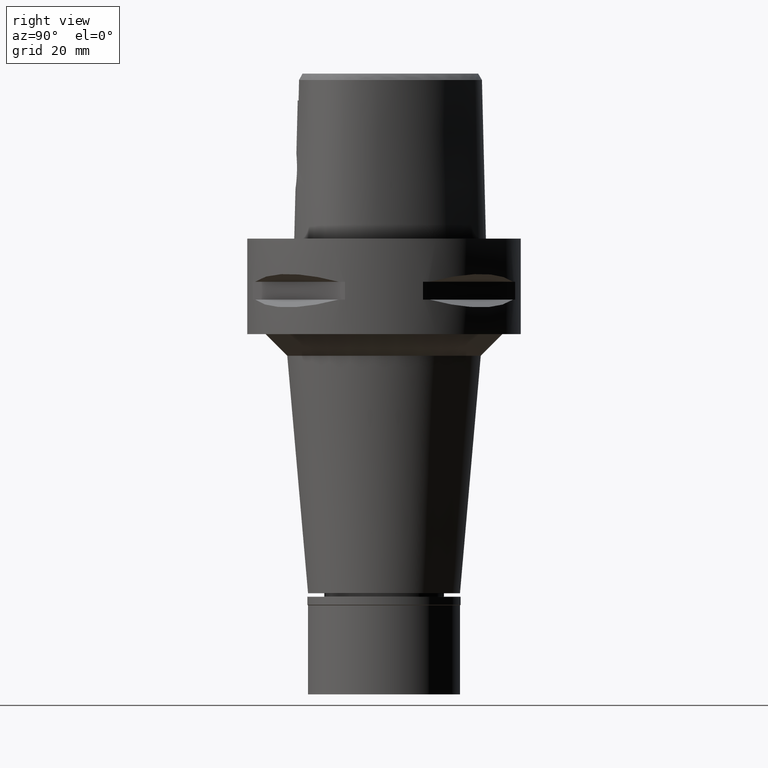
[diagram: clean part render]
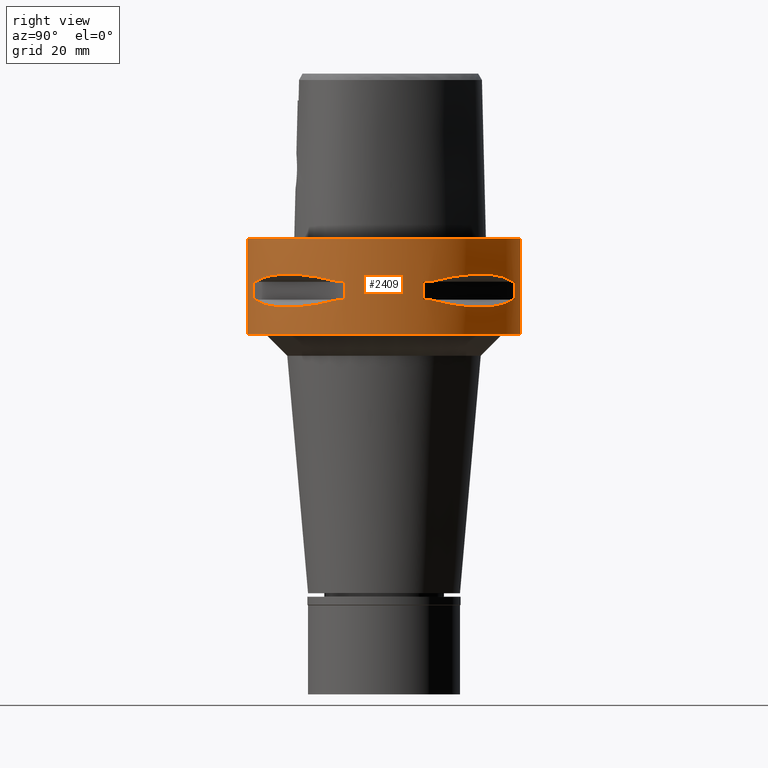
[diagram: same view with one face highlighted and labeled with its STEP entity id]
A machine part, right view. The second image highlights one B-rep face of the part: STEP entity #2409.
In plain terms, the highlighted cylindrical surface (partial cylindrical patch) has radius 31.5 mm, axis along (0, 0, -1).
Its self-contained STEP definition (entity closure, byte-faithful):
#7 = ORIENTED_EDGE ( 'NONE', *, *, #3796, .T. ) ;
#57 = DIRECTION ( 'NONE',  ( 0.0000000000000000000, 0.0000000000000000000, -1.000000000000000000 ) ) ;
#60 = CARTESIAN_POINT ( 'NONE',  ( 17.14106442935163699, 26.42800887047211944, -15.43984550238531916 ) ) ;
#114 = CARTESIAN_POINT ( 'NONE',  ( 26.84474411198702981, 16.48208282229089505, -15.34094883778014129 ) ) ;
#132 = DIRECTION ( 'NONE',  ( 0.0000000000000000000, -1.000000000000000000, 0.0000000000000000000 ) ) ;
#148 = AXIS2_PLACEMENT_3D ( 'NONE', #468, #4031, #132 ) ;
#153 = CARTESIAN_POINT ( 'NONE',  ( 26.42800887047654967, -17.14106442934675911, -15.43984550238513620 ) ) ;
#165 = CARTESIAN_POINT ( 'NONE',  ( 30.19251670572000279, 8.981198972019999616, -9.950000000000001066 ) ) ;
#186 = CARTESIAN_POINT ( 'NONE',  ( 28.91382665370159089, -12.73197616784618269, -14.65467361752943098 ) ) ;
#251 = CARTESIAN_POINT ( 'NONE',  ( 10.44775724750000023, -29.71690375017999841, -14.05000000000000071 ) ) ;
#256 = VERTEX_POINT ( 'NONE', #4543 ) ;
#339 = LINE ( 'NONE', #4212, #2525 ) ;
#356 = CARTESIAN_POINT ( 'NONE',  ( 10.44775724750000023, 29.71690375017999841, -9.949999999998999201 ) ) ;
#382 = CARTESIAN_POINT ( 'NONE',  ( 0.0000000000000000000, 1.284838189324999924E-14, 0.0000000000000000000 ) ) ;
#402 = EDGE_LOOP ( 'NONE', ( #2765, #3060, #3937, #2060 ) ) ;
#425 = CIRCLE ( 'NONE', #4785, 31.50000000000000711 ) ;
#429 = EDGE_CURVE ( 'NONE', #4038, #3099, #1584, .T. ) ;
#463 = CARTESIAN_POINT ( 'NONE',  ( 10.44775724750000023, 29.71690375017999841, -14.05000000000000071 ) ) ;
#468 = CARTESIAN_POINT ( 'NONE',  ( 0.0000000000000000000, 1.284838189324999924E-14, -22.00000000000000000 ) ) ;
#518 = CARTESIAN_POINT ( 'NONE',  ( 0.0000000000000000000, 1.284838189324999924E-14, -9.950000000000001066 ) ) ;
#551 = EDGE_LOOP ( 'NONE', ( #786, #1261, #7, #3189, #3552, #3837, #4156, #4353 ) ) ;
#561 = DIRECTION ( 'NONE',  ( 0.2851174276831918153, -0.9584925938322735872, 0.0000000000000000000 ) ) ;
#575 = LINE ( 'NONE', #3693, #718 ) ;
#718 = VECTOR ( 'NONE', #4441, 1000.000000000000000 ) ;
#786 = ORIENTED_EDGE ( 'NONE', *, *, #3163, .T. ) ;
#834 = DIRECTION ( 'NONE',  ( 0.0000000000000000000, 0.0000000000000000000, -1.000000000000000000 ) ) ;
#837 = VERTEX_POINT ( 'NONE', #463 ) ;
#846 = CARTESIAN_POINT ( 'NONE',  ( 18.59229662067690114, 25.43927894889767316, -15.62866126334676942 ) ) ;
#926 = CARTESIAN_POINT ( 'NONE',  ( 26.70521063584491017, 16.70616724745910275, -15.37546661817714444 ) ) ;
#940 = CARTESIAN_POINT ( 'NONE',  ( 12.70092055722019531, -28.92474506847805316, -9.353547358250271060 ) ) ;
#946 = CARTESIAN_POINT ( 'NONE',  ( 20.65093790434436372, -23.89673728056386182, -15.83935804901581079 ) ) ;
#954 = EDGE_CURVE ( 'NONE', #1259, #2071, #4377, .T. ) ;
#986 = EDGE_CURVE ( 'NONE', #3859, #4405, #1373, .T. ) ;
#999 = EDGE_CURVE ( 'NONE', #3929, #1629, #3682, .T. ) ;
#1023 = CARTESIAN_POINT ( 'NONE',  ( 13.25636937907020929, -28.62019653467701730, -14.74888225542203379 ) ) ;
#1106 = CARTESIAN_POINT ( 'NONE',  ( 8.981198972019999616, 30.19251670572000279, -14.05000000000000071 ) ) ;
#1178 = DIRECTION ( 'NONE',  ( 0.0000000000000000000, 1.000000000000000000, 0.0000000000000000000 ) ) ;
#1211 = ORIENTED_EDGE ( 'NONE', *, *, #954, .T. ) ;
#1228 = CARTESIAN_POINT ( 'NONE',  ( 29.71690375017999841, -10.44775724750000023, -9.949999999998999201 ) ) ;
#1233 = EDGE_CURVE ( 'NONE', #3929, #1406, #3420, .T. ) ;
#1234 = AXIS2_PLACEMENT_3D ( 'NONE', #3469, #1252, #4228 ) ;
#1235 = CARTESIAN_POINT ( 'NONE',  ( 17.76952662673489769, 26.01217882833579154, -15.52665221626253356 ) ) ;
#1244 = CIRCLE ( 'NONE', #4144, 31.50000000000000711 ) ;
#1252 = DIRECTION ( 'NONE',  ( 0.0000000000000000000, 0.0000000000000000000, -1.000000000000000000 ) ) ;
#1259 = VERTEX_POINT ( 'NONE', #2486 ) ;
#1261 = ORIENTED_EDGE ( 'NONE', *, *, #429, .F. ) ;
#1274 = CARTESIAN_POINT ( 'NONE',  ( 0.0000000000000000000, 1.284838189324999924E-14, -9.950000000000001066 ) ) ;
#1278 = CARTESIAN_POINT ( 'NONE',  ( 14.84422749186521351, -27.88214534477222628, -8.906206096533258787 ) ) ;
#1306 = CARTESIAN_POINT ( 'NONE',  ( 23.89673728051777957, 20.65093790438612587, -15.83935804901405042 ) ) ;
#1324 = CARTESIAN_POINT ( 'NONE',  ( 10.44775724750000023, -29.71690375017999841, -9.949999999998999201 ) ) ;
#1351 = CARTESIAN_POINT ( 'NONE',  ( 27.88214534477233286, 14.84422749186507318, -8.906206096533262340 ) ) ;
#1373 = LINE ( 'NONE', #2199, #4608 ) ;
#1391 = CIRCLE ( 'NONE', #2839, 31.50000000000000000 ) ;
#1401 = DIRECTION ( 'NONE',  ( 0.0000000000000000000, 0.0000000000000000000, -1.000000000000000000 ) ) ;
#1406 = VERTEX_POINT ( 'NONE', #3038 ) ;
#1466 = CIRCLE ( 'NONE', #1797, 31.50000000000001776 ) ;
#1505 = EDGE_CURVE ( 'NONE', #3859, #2415, #1645, .T. ) ;
#1512 = EDGE_CURVE ( 'NONE', #2245, #837, #3306, .T. ) ;
#1516 = CARTESIAN_POINT ( 'NONE',  ( 18.81462633043445010, 25.37272068390331725, -8.309724968561150504 ) ) ;
#1584 = LINE ( 'NONE', #2336, #2268 ) ;
#1605 = DIRECTION ( 'NONE',  ( 0.0000000000000000000, 0.0000000000000000000, -1.000000000000000000 ) ) ;
#1623 = LINE ( 'NONE', #2404, #1792 ) ;
#1629 = VERTEX_POINT ( 'NONE', #2572 ) ;
#1645 = CIRCLE ( 'NONE', #2273, 31.50000000000001776 ) ;
#1669 = DIRECTION ( 'NONE',  ( 0.0000000000000000000, 0.0000000000000000000, 1.000000000000000000 ) ) ;
#1678 = DIRECTION ( 'NONE',  ( 0.9584925938322735872, 0.2851174276831918153, 0.0000000000000000000 ) ) ;
#1690 = VERTEX_POINT ( 'NONE', #2479 ) ;
#1694 = CARTESIAN_POINT ( 'NONE',  ( 28.92472615202282427, -12.70097436192359552, -9.353533115182571578 ) ) ;
#1702 = CARTESIAN_POINT ( 'NONE',  ( 16.98999780422198569, 26.52527364208497573, -15.41788098766329540 ) ) ;
#1721 = CARTESIAN_POINT ( 'NONE',  ( 18.81455742151816324, -25.37277178176728398, -8.309746333162701504 ) ) ;
#1792 = VECTOR ( 'NONE', #57, 1000.000000000000000 ) ;
#1797 = AXIS2_PLACEMENT_3D ( 'NONE', #2285, #1605, #4668 ) ;
#1801 = CARTESIAN_POINT ( 'NONE',  ( 25.43927894892507169, -18.59229662064666755, -15.62866126334561123 ) ) ;
#1807 = ORIENTED_EDGE ( 'NONE', *, *, #2645, .T. ) ;
#1812 = EDGE_CURVE ( 'NONE', #2415, #3240, #4865, .T. ) ;
#1823 = CARTESIAN_POINT ( 'NONE',  ( 29.71690375017999841, 10.44775724750000023, -9.949999999998999201 ) ) ;
#1873 = EDGE_CURVE ( 'NONE', #2540, #256, #1391, .T. ) ;
#1885 = EDGE_LOOP ( 'NONE', ( #3939, #2407, #3560, #4109, #4443, #3541, #1211, #1807 ) ) ;
#1894 = CARTESIAN_POINT ( 'NONE',  ( 30.19251670572000279, -8.981198972019999616, -14.05000000000000071 ) ) ;
#1927 = CARTESIAN_POINT ( 'NONE',  ( 10.44775724750000023, -29.71690375017999841, -9.949999999998999201 ) ) ;
#1964 = DIRECTION ( 'NONE',  ( 0.0000000000000000000, 0.0000000000000000000, 1.000000000000000000 ) ) ;
#1968 = DIRECTION ( 'NONE',  ( 0.0000000000000000000, 0.0000000000000000000, 1.000000000000000000 ) ) ;
#1976 = CARTESIAN_POINT ( 'NONE',  ( 29.71690375017999841, 10.44775724750000023, -9.949999999998999201 ) ) ;
#1996 = CARTESIAN_POINT ( 'NONE',  ( 8.981198972017999438, 30.19251670572000279, -9.950000000000001066 ) ) ;
#1998 = CYLINDRICAL_SURFACE ( 'NONE', #1234, 31.50000000000000000 ) ;
#2026 = CARTESIAN_POINT ( 'NONE',  ( 0.0000000000000000000, 1.284838189324999924E-14, -9.950000000000001066 ) ) ;
#2030 = EDGE_CURVE ( 'NONE', #2540, #3357, #1623, .T. ) ;
#2036 = CARTESIAN_POINT ( 'NONE',  ( 26.58330558444425762, 16.89910283486581832, -15.40446471307235754 ) ) ;
#2048 = AXIS2_PLACEMENT_3D ( 'NONE', #4757, #2458, #561 ) ;
#2060 = ORIENTED_EDGE ( 'NONE', *, *, #2030, .F. ) ;
#2061 = CARTESIAN_POINT ( 'NONE',  ( 29.71690375017999841, 10.44775724750000023, -14.05000000000000071 ) ) ;
#2071 = VERTEX_POINT ( 'NONE', #1927 ) ;
#2079 = CARTESIAN_POINT ( 'NONE',  ( 29.31542262584548553, 11.58970337494890224, -14.35229357167063213 ) ) ;
#2107 = CARTESIAN_POINT ( 'NONE',  ( 16.89910283486529252, -26.58330558444471947, -15.40446471307232912 ) ) ;
#2172 = CARTESIAN_POINT ( 'NONE',  ( 26.52527364208627958, -16.98999780422056816, -15.41788098766324744 ) ) ;
#2199 = CARTESIAN_POINT ( 'NONE',  ( 30.19251670572000279, 8.981198972017999438, -9.950000000000001066 ) ) ;
#2245 = VERTEX_POINT ( 'NONE', #2500 ) ;
#2268 = VECTOR ( 'NONE', #1968, 1000.000000000000000 ) ;
#2273 = AXIS2_PLACEMENT_3D ( 'NONE', #518, #4758, #1678 ) ;
#2285 = CARTESIAN_POINT ( 'NONE',  ( 0.0000000000000000000, 1.284838189324999924E-14, -14.05000000000000071 ) ) ;
#2300 = EDGE_CURVE ( 'NONE', #4611, #4317, #3489, .T. ) ;
#2327 = CIRCLE ( 'NONE', #148, 31.50000000000000000 ) ;
#2336 = CARTESIAN_POINT ( 'NONE',  ( 8.981198972017999438, 30.19251670572000279, -14.05000000000000071 ) ) ;
#2339 = CARTESIAN_POINT ( 'NONE',  ( 0.0000000000000000000, 1.284838189324999924E-14, -14.05000000000000071 ) ) ;
#2362 = CIRCLE ( 'NONE', #2596, 31.50000000000001776 ) ;
#2383 = CARTESIAN_POINT ( 'NONE',  ( 12.73197616789159525, 28.91382665368562144, -14.65467361754145514 ) ) ;
#2404 = CARTESIAN_POINT ( 'NONE',  ( 0.0000000000000000000, 31.50000000000000000, 0.0000000000000000000 ) ) ;
#2407 = ORIENTED_EDGE ( 'NONE', *, *, #4192, .F. ) ;
#2408 = CARTESIAN_POINT ( 'NONE',  ( 17.05047092244498685, 26.48642424310287780, -15.42670883407686411 ) ) ;
#2409 = ADVANCED_FACE ( 'NONE', ( #3135, #3496, #2700 ), #1998, .T. ) ;
#2415 = VERTEX_POINT ( 'NONE', #1976 ) ;
#2416 = DIRECTION ( 'NONE',  ( 0.3316748332540863653, -0.9433937698468619626, 0.0000000000000000000 ) ) ;
#2458 = DIRECTION ( 'NONE',  ( 0.0000000000000000000, 0.0000000000000000000, 1.000000000000000000 ) ) ;
#2474 = CARTESIAN_POINT ( 'NONE',  ( 25.37272068390325330, -18.81462633043449983, -8.309724968561150504 ) ) ;
#2479 = CARTESIAN_POINT ( 'NONE',  ( 0.0000000000000000000, -31.50000000000000000, -22.00000000000000000 ) ) ;
#2486 = CARTESIAN_POINT ( 'NONE',  ( 8.981198972019999616, -30.19251670572000279, -9.950000000000001066 ) ) ;
#2500 = CARTESIAN_POINT ( 'NONE',  ( 29.71690375017999841, 10.44775724750000023, -14.05000000000000071 ) ) ;
#2525 = VECTOR ( 'NONE', #1964, 1000.000000000000000 ) ;
#2529 = CARTESIAN_POINT ( 'NONE',  ( 16.70616724746217940, -26.70521063584381949, -15.37546661817795624 ) ) ;
#2540 = VERTEX_POINT ( 'NONE', #3110 ) ;
#2551 = CARTESIAN_POINT ( 'NONE',  ( 16.86571563436751475, -26.60451452154716989, -15.39949295786035854 ) ) ;
#2572 = CARTESIAN_POINT ( 'NONE',  ( 29.71690375017999841, -10.44775724750000023, -14.05000000000000071 ) ) ;
#2574 = DIRECTION ( 'NONE',  ( 0.0000000000000000000, 0.0000000000000000000, -1.000000000000000000 ) ) ;
#2596 = AXIS2_PLACEMENT_3D ( 'NONE', #2339, #834, #3080 ) ;
#2645 = EDGE_CURVE ( 'NONE', #2071, #4611, #4450, .T. ) ;
#2700 = FACE_BOUND ( 'NONE', #551, .T. ) ;
#2704 = CARTESIAN_POINT ( 'NONE',  ( 14.84430321591224278, 27.88210502977331373, -8.906184731931707788 ) ) ;
#2721 = DIRECTION ( 'NONE',  ( 0.0000000000000000000, 0.0000000000000000000, 1.000000000000000000 ) ) ;
#2737 = CARTESIAN_POINT ( 'NONE',  ( 0.0000000000000000000, 31.50000000000000000, -22.00000000000000000 ) ) ;
#2763 = CARTESIAN_POINT ( 'NONE',  ( 17.35163608580574035, 26.29071741523071282, -15.46976201925525274 ) ) ;
#2765 = ORIENTED_EDGE ( 'NONE', *, *, #1873, .T. ) ;
#2782 = DIRECTION ( 'NONE',  ( 0.9433937698468619626, -0.3316748332540863653, 0.0000000000000000000 ) ) ;
#2789 = CARTESIAN_POINT ( 'NONE',  ( 27.11872488589154528, 16.03138450078616728, -15.26880420107737990 ) ) ;
#2805 = CARTESIAN_POINT ( 'NONE',  ( 27.88210502977326755, -14.84430321591228186, -8.906184731931707788 ) ) ;
#2823 = DIRECTION ( 'NONE',  ( 0.3316748332540863653, 0.9433937698468619626, 0.0000000000000000000 ) ) ;
#2839 = AXIS2_PLACEMENT_3D ( 'NONE', #382, #3854, #1178 ) ;
#2840 = CARTESIAN_POINT ( 'NONE',  ( 21.46242677080035932, 23.08532645886616308, -15.83938991065496715 ) ) ;
#2861 = CARTESIAN_POINT ( 'NONE',  ( 16.80193241490779599, -26.64486562695696037, -15.38992683735752642 ) ) ;
#2862 = CARTESIAN_POINT ( 'NONE',  ( 26.64486562695759275, 16.80193241490600542, -15.38992683735705391 ) ) ;
#2880 = CARTESIAN_POINT ( 'NONE',  ( 26.29071741523927841, -17.35163608579630079, -15.46976201925489569 ) ) ;
#2881 = CARTESIAN_POINT ( 'NONE',  ( 25.37277178176736570, 18.81455742151809574, -8.309746333162701504 ) ) ;
#3038 = CARTESIAN_POINT ( 'NONE',  ( 8.981198972017999438, -30.19251670572000279, -14.05000000000000071 ) ) ;
#3060 = ORIENTED_EDGE ( 'NONE', *, *, #4529, .T. ) ;
#3080 = DIRECTION ( 'NONE',  ( 0.2851174276831918153, 0.9584925938322735872, 0.0000000000000000000 ) ) ;
#3099 = VERTEX_POINT ( 'NONE', #1996 ) ;
#3110 = CARTESIAN_POINT ( 'NONE',  ( 0.0000000000000000000, 31.50000000000000000, 0.0000000000000000000 ) ) ;
#3135 = FACE_OUTER_BOUND ( 'NONE', #402, .T. ) ;
#3163 = EDGE_CURVE ( 'NONE', #3240, #3099, #1244, .T. ) ;
#3179 = CARTESIAN_POINT ( 'NONE',  ( 10.44775724750000023, 29.71690375017999841, -14.05000000000000071 ) ) ;
#3189 = ORIENTED_EDGE ( 'NONE', *, *, #1512, .F. ) ;
#3215 = EDGE_CURVE ( 'NONE', #2245, #4405, #425, .T. ) ;
#3239 = DIRECTION ( 'NONE',  ( 0.9433937698468619626, 0.3316748332540863653, 0.0000000000000000000 ) ) ;
#3240 = VERTEX_POINT ( 'NONE', #3572 ) ;
#3254 = CARTESIAN_POINT ( 'NONE',  ( 11.58970337496347902, -29.31542262584038028, -14.35229357167449216 ) ) ;
#3298 = LINE ( 'NONE', #4062, #4677 ) ;
#3306 = B_SPLINE_CURVE_WITH_KNOTS ( 'NONE', 3,
 ( #2061, #2079, #4316, #3630, #2789, #114, #926, #2862, #4787, #2036, #3609, #1306, #2840, #4007, #846, #1235, #2763, #60, #2408, #1702, #4409, #4717, #2383, #3179 ),
 .UNSPECIFIED., .F., .F.,
 ( 4, 1, 1, 1, 1, 1, 2, 2, 2, 1, 1, 1, 1, 1, 2, 2, 4 ),
 ( 0.0000000000000000000, 0.1250000000000023870, 0.1875000000000036915, 0.2187500000000045797, 0.2343750000000049960, 0.2421875000000053013, 0.2460937500000055789, 0.2500000000000058842, 0.5000000000000076605, 0.6250000000000083267, 0.6875000000000086597, 0.7187500000000088818, 0.7343750000000086597, 0.7421875000000086597, 0.7460937500000084377, 0.7500000000000083267, 1.000000000000000000 ),
 .UNSPECIFIED. ) ;
#3328 = AXIS2_PLACEMENT_3D ( 'NONE', #2026, #2721, #2782 ) ;
#3349 = CARTESIAN_POINT ( 'NONE',  ( 26.48642424310542509, -17.05047092244215889, -15.42670883407675042 ) ) ;
#3357 = VERTEX_POINT ( 'NONE', #2737 ) ;
#3376 = CARTESIAN_POINT ( 'NONE',  ( 28.92474506847813132, 12.70092055722002122, -9.353547358250267507 ) ) ;
#3396 = EDGE_CURVE ( 'NONE', #3690, #1629, #1466, .T. ) ;
#3420 = CIRCLE ( 'NONE', #3728, 31.50000000000000711 ) ;
#3469 = CARTESIAN_POINT ( 'NONE',  ( 0.0000000000000000000, 1.284838189324999924E-14, 4.915000000000000036 ) ) ;
#3489 = CIRCLE ( 'NONE', #3328, 31.50000000000000711 ) ;
#3496 = FACE_BOUND ( 'NONE', #1885, .T. ) ;
#3541 = ORIENTED_EDGE ( 'NONE', *, *, #4894, .F. ) ;
#3552 = ORIENTED_EDGE ( 'NONE', *, *, #3215, .T. ) ;
#3560 = ORIENTED_EDGE ( 'NONE', *, *, #3396, .T. ) ;
#3572 = CARTESIAN_POINT ( 'NONE',  ( 10.44775724750000023, 29.71690375017999841, -9.949999999998999201 ) ) ;
#3597 = DIRECTION ( 'NONE',  ( 0.0000000000000000000, 0.0000000000000000000, -1.000000000000000000 ) ) ;
#3609 = CARTESIAN_POINT ( 'NONE',  ( 25.32725744468687168, 18.86897208071480136, -15.69588095933130845 ) ) ;
#3619 = CARTESIAN_POINT ( 'NONE',  ( 0.0000000000000000000, 1.284838189324999924E-14, -14.05000000000000071 ) ) ;
#3630 = CARTESIAN_POINT ( 'NONE',  ( 27.64634172018161706, 15.11986997310341962, -15.11207862403678170 ) ) ;
#3656 = CARTESIAN_POINT ( 'NONE',  ( 16.03138450079733346, -27.11872488588761954, -15.26880420108033398 ) ) ;
#3682 = B_SPLINE_CURVE_WITH_KNOTS ( 'NONE', 3,
 ( #251, #3254, #1023, #4827, #3656, #4408, #2529, #2861, #2551, #2107, #4429, #946, #4059, #4478, #1801, #4029, #2880, #153, #3349, #2172, #3702, #4455, #186, #4786 ),
 .UNSPECIFIED., .F., .F.,
 ( 4, 1, 1, 1, 1, 1, 2, 2, 2, 1, 1, 1, 1, 1, 2, 2, 4 ),
 ( 0.0000000000000000000, 0.1250000000000063005, 0.1875000000000094369, 0.2187500000000109357, 0.2343750000000116851, 0.2421875000000119627, 0.2460937500000119627, 0.2500000000000119349, 0.5000000000000025535, 0.6249999999999978906, 0.6874999999999955591, 0.7187499999999945599, 0.7343749999999941158, 0.7421874999999936717, 0.7460937499999935607, 0.7499999999999933387, 1.000000000000000000 ),
 .UNSPECIFIED. ) ;
#3690 = VERTEX_POINT ( 'NONE', #1894 ) ;
#3693 = CARTESIAN_POINT ( 'NONE',  ( 8.981198972017999438, -30.19251670572000279, -9.950000000000001066 ) ) ;
#3702 = CARTESIAN_POINT ( 'NONE',  ( 26.54368690921627305, -16.96123479564985459, -15.41365572341332602 ) ) ;
#3728 = AXIS2_PLACEMENT_3D ( 'NONE', #3994, #3597, #2416 ) ;
#3779 = CARTESIAN_POINT ( 'NONE',  ( 12.70097436192362572, 28.92472615202282782, -9.353533115182571578 ) ) ;
#3796 = EDGE_CURVE ( 'NONE', #4038, #837, #2362, .T. ) ;
#3837 = ORIENTED_EDGE ( 'NONE', *, *, #986, .F. ) ;
#3854 = DIRECTION ( 'NONE',  ( 0.0000000000000000000, 0.0000000000000000000, -1.000000000000000000 ) ) ;
#3859 = VERTEX_POINT ( 'NONE', #165 ) ;
#3929 = VERTEX_POINT ( 'NONE', #4350 ) ;
#3937 = ORIENTED_EDGE ( 'NONE', *, *, #4355, .T. ) ;
#3939 = ORIENTED_EDGE ( 'NONE', *, *, #2300, .T. ) ;
#3949 = DIRECTION ( 'NONE',  ( 0.0000000000000000000, 0.0000000000000000000, -1.000000000000000000 ) ) ;
#3994 = CARTESIAN_POINT ( 'NONE',  ( 0.0000000000000000000, 1.284838189324999924E-14, -14.05000000000000071 ) ) ;
#4007 = CARTESIAN_POINT ( 'NONE',  ( 20.18579225689579104, 24.23018836742823723, -15.78559396979392560 ) ) ;
#4023 = CARTESIAN_POINT ( 'NONE',  ( 29.71690375017999841, -10.44775724750000023, -9.949999999998999201 ) ) ;
#4029 = CARTESIAN_POINT ( 'NONE',  ( 26.01217882835178585, -17.76952662671725847, -15.52665221626185676 ) ) ;
#4031 = DIRECTION ( 'NONE',  ( 0.0000000000000000000, 0.0000000000000000000, 1.000000000000000000 ) ) ;
#4038 = VERTEX_POINT ( 'NONE', #1106 ) ;
#4053 = CARTESIAN_POINT ( 'NONE',  ( 20.64154884334739393, -23.90617837140507973, -8.160627831333192361 ) ) ;
#4059 = CARTESIAN_POINT ( 'NONE',  ( 23.08532645888704238, -21.46242677077732353, -15.83938991065408963 ) ) ;
#4062 = CARTESIAN_POINT ( 'NONE',  ( 0.0000000000000000000, -31.50000000000000000, 0.0000000000000000000 ) ) ;
#4109 = ORIENTED_EDGE ( 'NONE', *, *, #999, .F. ) ;
#4144 = AXIS2_PLACEMENT_3D ( 'NONE', #1274, #1669, #2823 ) ;
#4156 = ORIENTED_EDGE ( 'NONE', *, *, #1505, .T. ) ;
#4192 = EDGE_CURVE ( 'NONE', #3690, #4317, #339, .T. ) ;
#4212 = CARTESIAN_POINT ( 'NONE',  ( 30.19251670572000279, -8.981198972017999438, -14.05000000000000071 ) ) ;
#4228 = DIRECTION ( 'NONE',  ( 0.0000000000000000000, -1.000000000000000000, 0.0000000000000000000 ) ) ;
#4316 = CARTESIAN_POINT ( 'NONE',  ( 28.62019653468597724, 13.25636937904471147, -14.74888225541528186 ) ) ;
#4317 = VERTEX_POINT ( 'NONE', #4720 ) ;
#4350 = CARTESIAN_POINT ( 'NONE',  ( 10.44775724750000023, -29.71690375017999841, -14.05000000000000071 ) ) ;
#4353 = ORIENTED_EDGE ( 'NONE', *, *, #1812, .T. ) ;
#4355 = EDGE_CURVE ( 'NONE', #1690, #3357, #2327, .T. ) ;
#4377 = CIRCLE ( 'NONE', #2048, 31.50000000000001776 ) ;
#4405 = VERTEX_POINT ( 'NONE', #4411 ) ;
#4408 = CARTESIAN_POINT ( 'NONE',  ( 16.48208282229687427, -26.84474411198493371, -15.34094883778172402 ) ) ;
#4409 = CARTESIAN_POINT ( 'NONE',  ( 16.96123479564913694, 26.54368690921650398, -15.41365572341313239 ) ) ;
#4411 = CARTESIAN_POINT ( 'NONE',  ( 30.19251670572000279, 8.981198972017999438, -14.05000000000000071 ) ) ;
#4429 = CARTESIAN_POINT ( 'NONE',  ( 18.86897208074864096, -25.32725744465734152, -15.69588095933306704 ) ) ;
#4430 = CARTESIAN_POINT ( 'NONE',  ( 23.90617837140502999, 20.64154884334748985, -8.160627831333194138 ) ) ;
#4441 = DIRECTION ( 'NONE',  ( 0.0000000000000000000, 0.0000000000000000000, -1.000000000000000000 ) ) ;
#4443 = ORIENTED_EDGE ( 'NONE', *, *, #1233, .T. ) ;
#4450 = B_SPLINE_CURVE_WITH_KNOTS ( 'NONE', 3,
 ( #1324, #940, #1278, #1721, #4053, #4802, #2474, #2805, #1694, #4023 ),
 .UNSPECIFIED., .F., .F.,
 ( 4, 2, 2, 2, 4 ),
 ( 0.0000000000000000000, 0.2500000000000001110, 0.5000000000000000000, 0.7500000000000000000, 1.000000000000000000 ),
 .UNSPECIFIED. ) ;
#4455 = CARTESIAN_POINT ( 'NONE',  ( 27.86285265927817889, -14.89252659053665795, -15.10765629750851602 ) ) ;
#4478 = CARTESIAN_POINT ( 'NONE',  ( 24.23018836746479110, -20.18579225685548195, -15.78559396979238194 ) ) ;
#4529 = EDGE_CURVE ( 'NONE', #256, #1690, #3298, .T. ) ;
#4543 = CARTESIAN_POINT ( 'NONE',  ( 0.0000000000000000000, -31.50000000000000000, 0.0000000000000000000 ) ) ;
#4608 = VECTOR ( 'NONE', #1401, 1000.000000000000000 ) ;
#4611 = VERTEX_POINT ( 'NONE', #1228 ) ;
#4668 = DIRECTION ( 'NONE',  ( 0.9584925938322735872, -0.2851174276831918153, 0.0000000000000000000 ) ) ;
#4677 = VECTOR ( 'NONE', #2574, 1000.000000000000000 ) ;
#4717 = CARTESIAN_POINT ( 'NONE',  ( 14.89252659058207939, 27.86285265926221300, -15.10765629752054195 ) ) ;
#4720 = CARTESIAN_POINT ( 'NONE',  ( 30.19251670572000279, -8.981198972017999438, -9.950000000000001066 ) ) ;
#4757 = CARTESIAN_POINT ( 'NONE',  ( 0.0000000000000000000, 1.284838189324999924E-14, -9.950000000000001066 ) ) ;
#4758 = DIRECTION ( 'NONE',  ( 0.0000000000000000000, 0.0000000000000000000, 1.000000000000000000 ) ) ;
#4785 = AXIS2_PLACEMENT_3D ( 'NONE', #3619, #3949, #3239 ) ;
#4786 = CARTESIAN_POINT ( 'NONE',  ( 29.71690375017999841, -10.44775724750000023, -14.05000000000000071 ) ) ;
#4787 = CARTESIAN_POINT ( 'NONE',  ( 26.60451452154748253, 16.86571563436660526, -15.39949295786011874 ) ) ;
#4802 = CARTESIAN_POINT ( 'NONE',  ( 23.90617837140503710, -20.64154884334745788, -8.160613588441446353 ) ) ;
#4827 = CARTESIAN_POINT ( 'NONE',  ( 15.11986997312254033, -27.64634172017490954, -15.11207862404184787 ) ) ;
#4865 = B_SPLINE_CURVE_WITH_KNOTS ( 'NONE', 3,
 ( #1823, #3376, #1351, #2881, #4430, #4971, #1516, #2704, #3779, #356 ),
 .UNSPECIFIED., .F., .F.,
 ( 4, 2, 2, 2, 4 ),
 ( 0.0000000000000000000, 0.2500000000000000000, 0.5000000000000000000, 0.7500000000000000000, 1.000000000000000000 ),
 .UNSPECIFIED. ) ;
#4894 = EDGE_CURVE ( 'NONE', #1259, #1406, #575, .T. ) ;
#4971 = CARTESIAN_POINT ( 'NONE',  ( 20.64154884334739037, 23.90617837140510105, -8.160613588441446353 ) ) ;